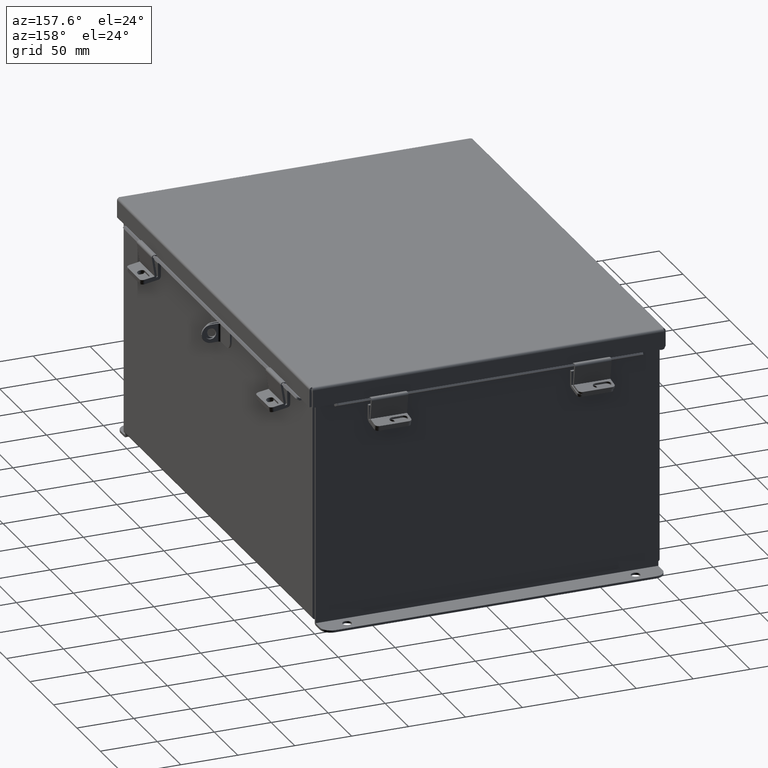
[diagram: clean part render]
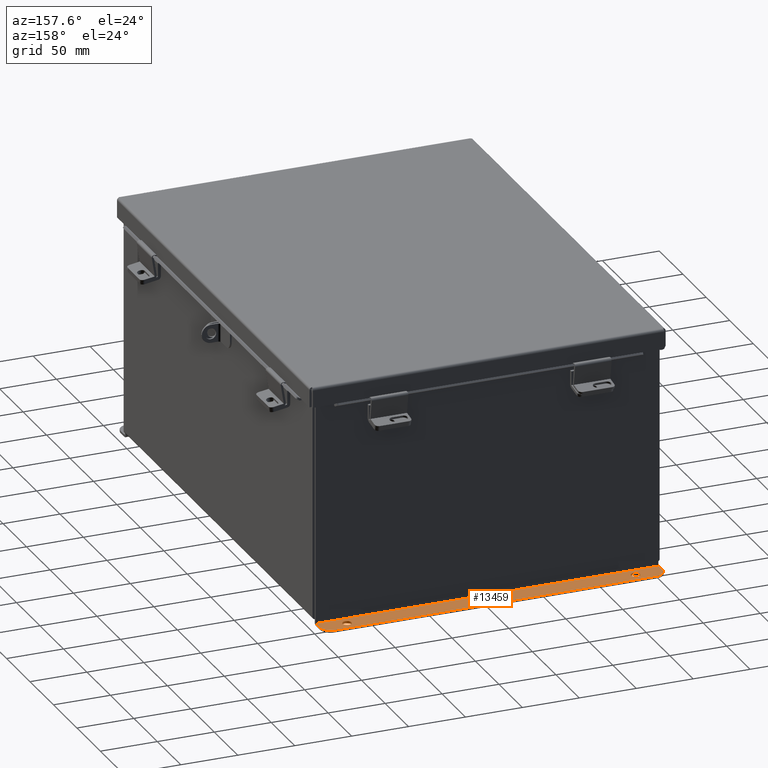
[diagram: same view with one face highlighted and labeled with its STEP entity id]
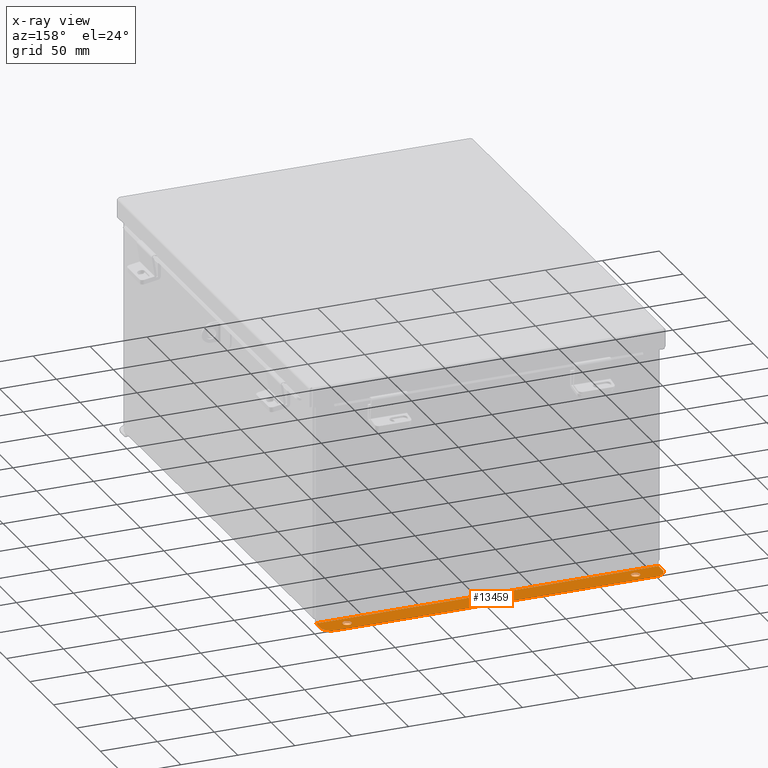
[diagram: x-ray of the same camera — body ghosted, the highlighted face saturated]
A machine part, auxiliary view. The second image highlights one B-rep face of the part: STEP entity #13459.
The next image is the same camera in x-ray: the body ghosted, the highlighted face saturated — about 0% of this face is hidden behind the body in this view.
In plain terms, the highlighted planar face has unit normal (0, 0, 1).
Its self-contained STEP definition (entity closure, byte-faithful):
#75 = AXIS2_PLACEMENT_3D ( 'NONE', #15074, #5693, #16642 ) ;
#211 = CARTESIAN_POINT ( 'NONE',  ( -4.987800000000000900, 0.3627999999999997300, -4.112300000000002100 ) ) ;
#224 = DIRECTION ( 'NONE',  ( 0.0000000000000000000, -1.000000000000000000, 3.502369222646487400E-015 ) ) ;
#366 = DIRECTION ( 'NONE',  ( 0.0000000000000000000, -1.000000000000000000, 4.370956789862820400E-015 ) ) ;
#497 = VERTEX_POINT ( 'NONE', #9473 ) ;
#630 = CARTESIAN_POINT ( 'NONE',  ( 5.550299999999999100, 0.7378000000000000100, -4.112300000000003800 ) ) ;
#1009 = ORIENTED_EDGE ( 'NONE', *, *, #2838, .T. ) ;
#1161 = VECTOR ( 'NONE', #10010, 39.37007874015748100 ) ;
#1177 = EDGE_CURVE ( 'NONE', #7599, #9838, #1887, .T. ) ;
#1744 = EDGE_CURVE ( 'NONE', #7599, #14191, #16023, .T. ) ;
#1759 = CARTESIAN_POINT ( 'NONE',  ( 0.0000000000000000000, -1.420560956705417000E-014, -4.112300000000001200 ) ) ;
#1887 = CIRCLE ( 'NONE', #6010, 0.3750000000000000600 ) ;
#2009 = AXIS2_PLACEMENT_3D ( 'NONE', #1759, #6413, #17346 ) ;
#2182 = CARTESIAN_POINT ( 'NONE',  ( 5.925299999999999100, 0.01300000000000010700, -4.112300000000001200 ) ) ;
#2315 = CARTESIAN_POINT ( 'NONE',  ( 5.925299999999999100, 0.7378000000000000100, -4.112300000000003800 ) ) ;
#2838 = EDGE_CURVE ( 'NONE', #17390, #497, #18719, .T. ) ;
#3211 = CARTESIAN_POINT ( 'NONE',  ( -5.925300000000001800, 0.7378000000000000100, -4.112300000000003800 ) ) ;
#3537 = EDGE_CURVE ( 'NONE', #14191, #5207, #7459, .T. ) ;
#3849 = DIRECTION ( 'NONE',  ( 1.000000000000000000, -0.0000000000000000000, -0.0000000000000000000 ) ) ;
#3911 = EDGE_CURVE ( 'NONE', #5207, #7318, #13557, .T. ) ;
#3952 = CARTESIAN_POINT ( 'NONE',  ( 5.925299999999999100, 0.0000000000000000000, -4.112300000000001200 ) ) ;
#4023 = VECTOR ( 'NONE', #15363, 39.37007874015748100 ) ;
#4361 = CIRCLE ( 'NONE', #5477, 0.1560000000000001700 ) ;
#4892 = EDGE_CURVE ( 'NONE', #9805, #18015, #18171, .T. ) ;
#5207 = VERTEX_POINT ( 'NONE', #17959 ) ;
#5345 = ORIENTED_EDGE ( 'NONE', *, *, #1744, .F. ) ;
#5477 = AXIS2_PLACEMENT_3D ( 'NONE', #5509, #16456, #7054 ) ;
#5509 = CARTESIAN_POINT ( 'NONE',  ( -4.987800000000000900, 0.3627999999999997300, -4.112300000000002100 ) ) ;
#5600 = CARTESIAN_POINT ( 'NONE',  ( 4.987799999999998200, 0.2067999999999996000, -4.112300000000001200 ) ) ;
#5623 = DIRECTION ( 'NONE',  ( -1.000000000000000000, -4.610480471308228800E-017, 1.707120063075582100E-031 ) ) ;
#5693 = DIRECTION ( 'NONE',  ( -0.0000000000000000000, -3.702694488566362300E-015, -1.000000000000000000 ) ) ;
#6010 = AXIS2_PLACEMENT_3D ( 'NONE', #7677, #15510, #12091 ) ;
#6019 = CARTESIAN_POINT ( 'NONE',  ( 5.925299999999999100, 0.3627999999999997300, -4.112300000000002100 ) ) ;
#6312 = EDGE_CURVE ( 'NONE', #8778, #7318, #6610, .T. ) ;
#6413 = DIRECTION ( 'NONE',  ( 0.0000000000000000000, 3.702694488566362300E-015, 1.000000000000000000 ) ) ;
#6610 = CIRCLE ( 'NONE', #17462, 0.3750000000000000600 ) ;
#6963 = VECTOR ( 'NONE', #5623, 39.37007874015748100 ) ;
#7054 = DIRECTION ( 'NONE',  ( 0.0000000000000000000, -1.000000000000000000, 3.502369222646487400E-015 ) ) ;
#7140 = DIRECTION ( 'NONE',  ( 0.0000000000000000000, -1.000000000000000000, 3.502369222646487400E-015 ) ) ;
#7318 = VERTEX_POINT ( 'NONE', #18169 ) ;
#7397 = ORIENTED_EDGE ( 'NONE', *, *, #3911, .F. ) ;
#7459 = LINE ( 'NONE', #9637, #6963 ) ;
#7562 = ORIENTED_EDGE ( 'NONE', *, *, #6312, .T. ) ;
#7599 = VERTEX_POINT ( 'NONE', #6019 ) ;
#7677 = CARTESIAN_POINT ( 'NONE',  ( 5.550299999999999100, 0.3627999999999997300, -4.112300000000002100 ) ) ;
#8778 = VERTEX_POINT ( 'NONE', #18135 ) ;
#9410 = ORIENTED_EDGE ( 'NONE', *, *, #10940, .T. ) ;
#9473 = CARTESIAN_POINT ( 'NONE',  ( -4.987800000000000900, 0.2067999999999996000, -4.112300000000001200 ) ) ;
#9503 = PLANE ( 'NONE',  #2009 ) ;
#9508 = DIRECTION ( 'NONE',  ( -0.0000000000000000000, -3.702694488566362300E-015, -1.000000000000000000 ) ) ;
#9637 = CARTESIAN_POINT ( 'NONE',  ( 5.925299999999999100, 0.01300000000000010700, -4.112300000000001200 ) ) ;
#9670 = CIRCLE ( 'NONE', #75, 0.1560000000000001700 ) ;
#9676 = DIRECTION ( 'NONE',  ( 0.0000000000000000000, 3.702694488566362300E-015, 1.000000000000000000 ) ) ;
#9805 = VERTEX_POINT ( 'NONE', #14568 ) ;
#9838 = VERTEX_POINT ( 'NONE', #630 ) ;
#10010 = DIRECTION ( 'NONE',  ( -0.0000000000000000000, 1.000000000000000000, -3.702694488566362300E-015 ) ) ;
#10565 = CARTESIAN_POINT ( 'NONE',  ( -4.987800000000000900, 0.5187999999999999300, -4.112300000000002100 ) ) ;
#10740 = EDGE_LOOP ( 'NONE', ( #5345, #16312, #13420, #7562, #7397, #13789 ) ) ;
#10940 = EDGE_CURVE ( 'NONE', #497, #17390, #4361, .T. ) ;
#11625 = EDGE_LOOP ( 'NONE', ( #13679, #12042 ) ) ;
#11866 = DIRECTION ( 'NONE',  ( -0.0000000000000000000, -3.702694488566362300E-015, -1.000000000000000000 ) ) ;
#12042 = ORIENTED_EDGE ( 'NONE', *, *, #12569, .T. ) ;
#12091 = DIRECTION ( 'NONE',  ( 0.0000000000000000000, -1.000000000000000000, 4.370956789862820400E-015 ) ) ;
#12096 = FACE_BOUND ( 'NONE', #16917, .T. ) ;
#12569 = EDGE_CURVE ( 'NONE', #18015, #9805, #9670, .T. ) ;
#13420 = ORIENTED_EDGE ( 'NONE', *, *, #16800, .F. ) ;
#13459 = ADVANCED_FACE ( 'NONE', ( #12096, #19881, #16728 ), #9503, .T. ) ;
#13557 = LINE ( 'NONE', #3211, #1161 ) ;
#13679 = ORIENTED_EDGE ( 'NONE', *, *, #4892, .T. ) ;
#13789 = ORIENTED_EDGE ( 'NONE', *, *, #3537, .F. ) ;
#14126 = AXIS2_PLACEMENT_3D ( 'NONE', #211, #11866, #7140 ) ;
#14191 = VERTEX_POINT ( 'NONE', #2182 ) ;
#14568 = CARTESIAN_POINT ( 'NONE',  ( 4.987799999999998200, 0.5187999999999999300, -4.112300000000002100 ) ) ;
#15074 = CARTESIAN_POINT ( 'NONE',  ( 4.987799999999998200, 0.3627999999999997300, -4.112300000000002100 ) ) ;
#15363 = DIRECTION ( 'NONE',  ( -0.0000000000000000000, -1.000000000000000000, 3.702694488566362300E-015 ) ) ;
#15510 = DIRECTION ( 'NONE',  ( 0.0000000000000000000, 3.702694488566362300E-015, 1.000000000000000000 ) ) ;
#16023 = LINE ( 'NONE', #3952, #4023 ) ;
#16312 = ORIENTED_EDGE ( 'NONE', *, *, #1177, .T. ) ;
#16456 = DIRECTION ( 'NONE',  ( -0.0000000000000000000, -3.702694488566362300E-015, -1.000000000000000000 ) ) ;
#16642 = DIRECTION ( 'NONE',  ( 0.0000000000000000000, -1.000000000000000000, 3.502369222646487400E-015 ) ) ;
#16728 = FACE_OUTER_BOUND ( 'NONE', #10740, .T. ) ;
#16800 = EDGE_CURVE ( 'NONE', #8778, #9838, #19645, .T. ) ;
#16917 = EDGE_LOOP ( 'NONE', ( #1009, #9410 ) ) ;
#17309 = AXIS2_PLACEMENT_3D ( 'NONE', #18855, #9508, #224 ) ;
#17346 = DIRECTION ( 'NONE',  ( 0.0000000000000000000, -1.000000000000000000, 3.702694488566362300E-015 ) ) ;
#17390 = VERTEX_POINT ( 'NONE', #10565 ) ;
#17462 = AXIS2_PLACEMENT_3D ( 'NONE', #19015, #9676, #366 ) ;
#17959 = CARTESIAN_POINT ( 'NONE',  ( -5.925300000000000000, 0.01299999999999901400, -4.112300000000001200 ) ) ;
#18015 = VERTEX_POINT ( 'NONE', #5600 ) ;
#18135 = CARTESIAN_POINT ( 'NONE',  ( -5.550299999999999100, 0.7378000000000000100, -4.112300000000003800 ) ) ;
#18169 = CARTESIAN_POINT ( 'NONE',  ( -5.925300000000001800, 0.3628000000000008400, -4.112300000000002100 ) ) ;
#18171 = CIRCLE ( 'NONE', #17309, 0.1560000000000001700 ) ;
#18719 = CIRCLE ( 'NONE', #14126, 0.1560000000000001700 ) ;
#18855 = CARTESIAN_POINT ( 'NONE',  ( 4.987799999999998200, 0.3627999999999997300, -4.112300000000002100 ) ) ;
#19015 = CARTESIAN_POINT ( 'NONE',  ( -5.550299999999999100, 0.3628000000000008400, -4.112300000000002100 ) ) ;
#19172 = VECTOR ( 'NONE', #3849, 39.37007874015748100 ) ;
#19645 = LINE ( 'NONE', #2315, #19172 ) ;
#19881 = FACE_BOUND ( 'NONE', #11625, .T. ) ;